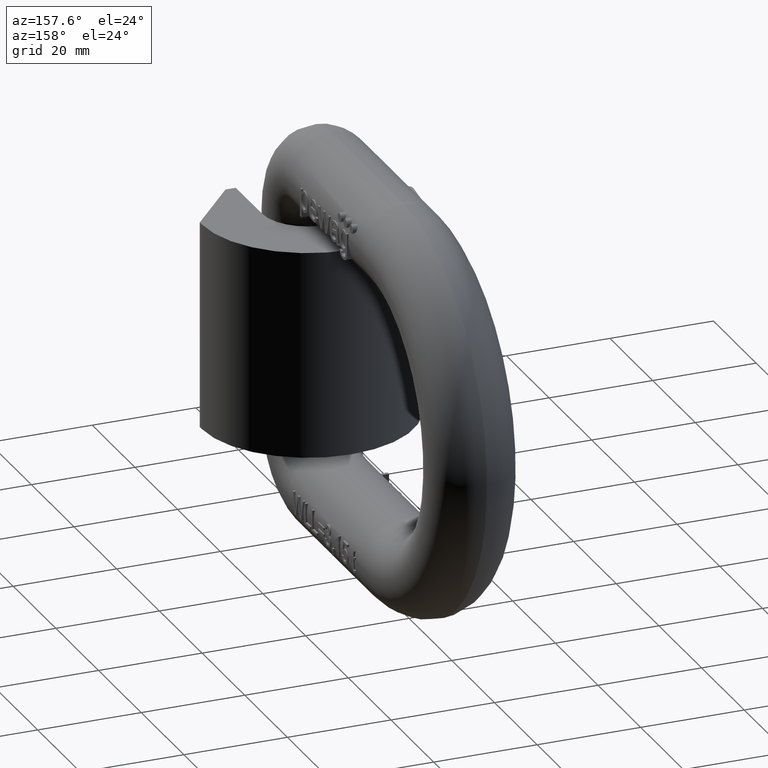
[diagram: clean part render]
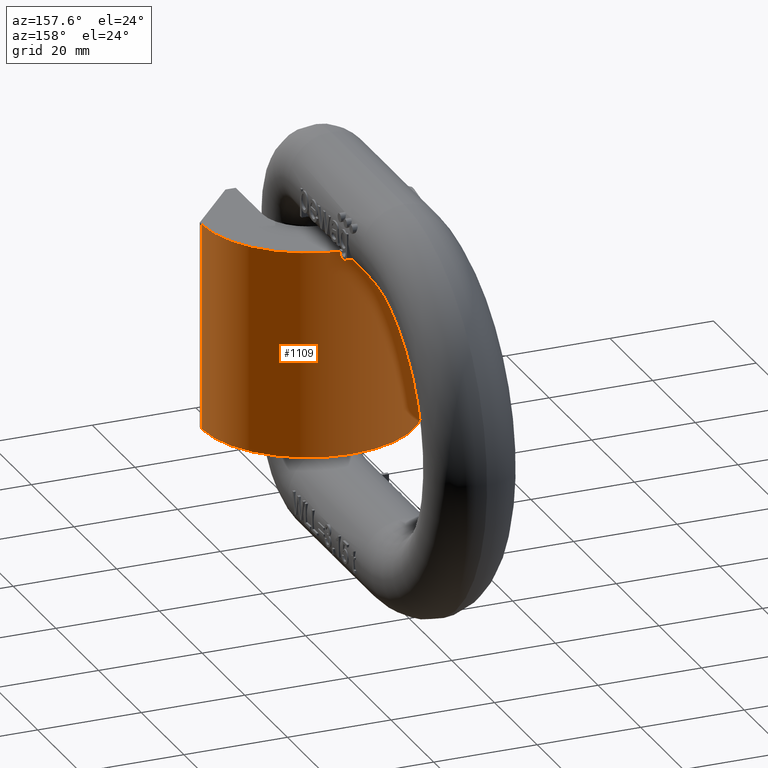
[diagram: same view with one face highlighted and labeled with its STEP entity id]
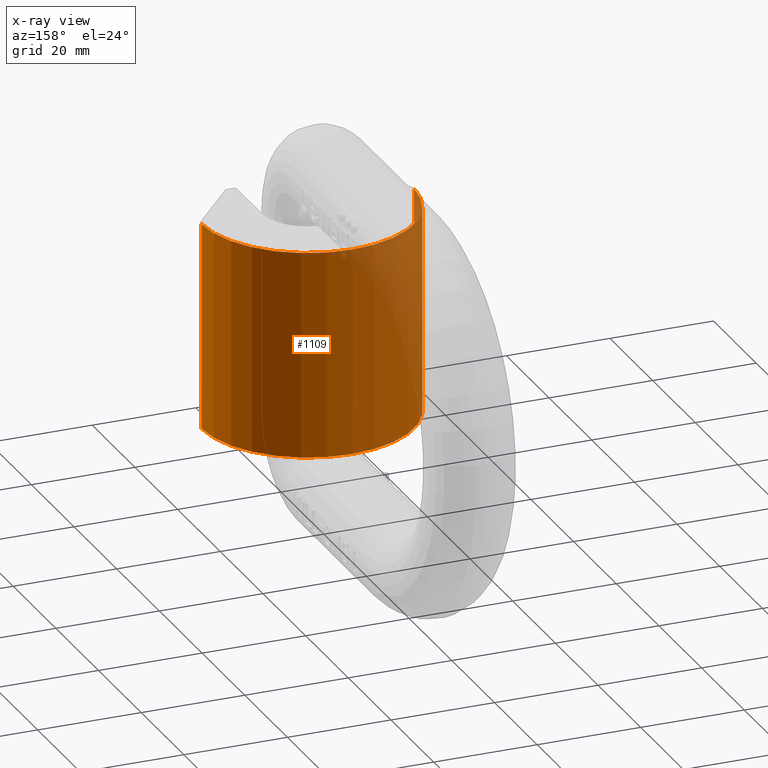
[diagram: x-ray of the same camera — body ghosted, the highlighted face saturated]
A machine part, auxiliary view. The second image highlights one B-rep face of the part: STEP entity #1109.
The next image is the same camera in x-ray: the body ghosted, the highlighted face saturated — about 13% of this face is hidden behind the body in this view.
In plain terms, the highlighted cylindrical surface (partial cylindrical patch) has radius 20.5 mm, axis along (0, 0, -1).
Its self-contained STEP definition (entity closure, byte-faithful):
#1074=CYLINDRICAL_SURFACE('',#8028,20.5);
#1109=ADVANCED_FACE('',(#1769),#1074,.T.);
#1769=FACE_OUTER_BOUND('',#2179,.T.);
#2179=EDGE_LOOP('',(#2800,#2801,#2802,#2803));
#2649=CIRCLE('',#8008,20.5);
#2650=CIRCLE('',#8010,20.5);
#2800=ORIENTED_EDGE('',*,*,#5755,.T.);
#2801=ORIENTED_EDGE('',*,*,#5763,.F.);
#2802=ORIENTED_EDGE('',*,*,#5750,.F.);
#2803=ORIENTED_EDGE('',*,*,#5791,.T.);
#4988=VERTEX_POINT('',#9796);
#4989=VERTEX_POINT('',#9798);
#4993=VERTEX_POINT('',#9807);
#4994=VERTEX_POINT('',#9809);
#5750=EDGE_CURVE('',#4988,#4989,#2649,.T.);
#5755=EDGE_CURVE('',#4994,#4993,#2650,.T.);
#5763=EDGE_CURVE('',#4989,#4993,#6893,.T.);
#5791=EDGE_CURVE('',#4988,#4994,#6921,.T.);
#6893=LINE('',#9823,#7369);
#6921=LINE('',#9877,#7397);
#7369=VECTOR('',#8410,1.);
#7397=VECTOR('',#8458,1.);
#8008=AXIS2_PLACEMENT_3D('',#9797,#8390,#8391);
#8010=AXIS2_PLACEMENT_3D('',#9808,#8398,#8399);
#8028=AXIS2_PLACEMENT_3D('',#9887,#8473,#8474);
#8390=DIRECTION('',(0.,0.,1.));
#8391=DIRECTION('',(1.,0.,0.));
#8398=DIRECTION('',(0.,0.,1.));
#8399=DIRECTION('',(1.,0.,0.));
#8410=DIRECTION('',(0.,0.,-1.));
#8458=DIRECTION('',(0.,0.,-1.));
#8473=DIRECTION('',(0.,0.,-1.));
#8474=DIRECTION('',(-1.,0.,0.));
#9796=CARTESIAN_POINT('',(20.5,12.5,20.));
#9797=CARTESIAN_POINT('',(0.,12.5,20.));
#9798=CARTESIAN_POINT('',(-20.5,12.5,20.));
#9807=CARTESIAN_POINT('',(-20.5,12.5,-20.));
#9808=CARTESIAN_POINT('',(0.,12.5,-20.));
#9809=CARTESIAN_POINT('',(20.5,12.5,-20.));
#9823=CARTESIAN_POINT('',(-20.5,12.5,20.));
#9877=CARTESIAN_POINT('',(20.5,12.5,20.));
#9887=CARTESIAN_POINT('',(0.,12.5,20.));